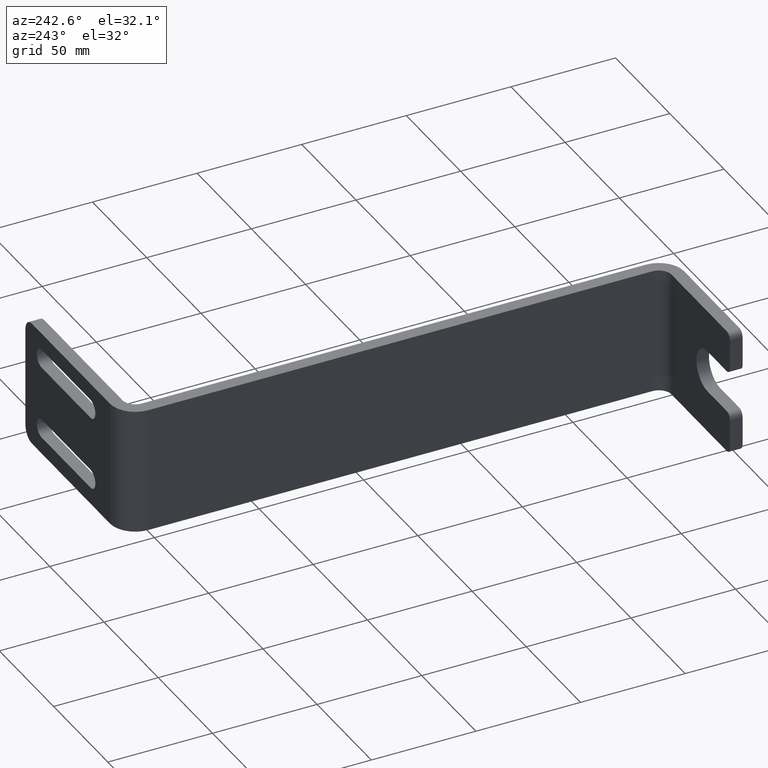
[diagram: clean part render]
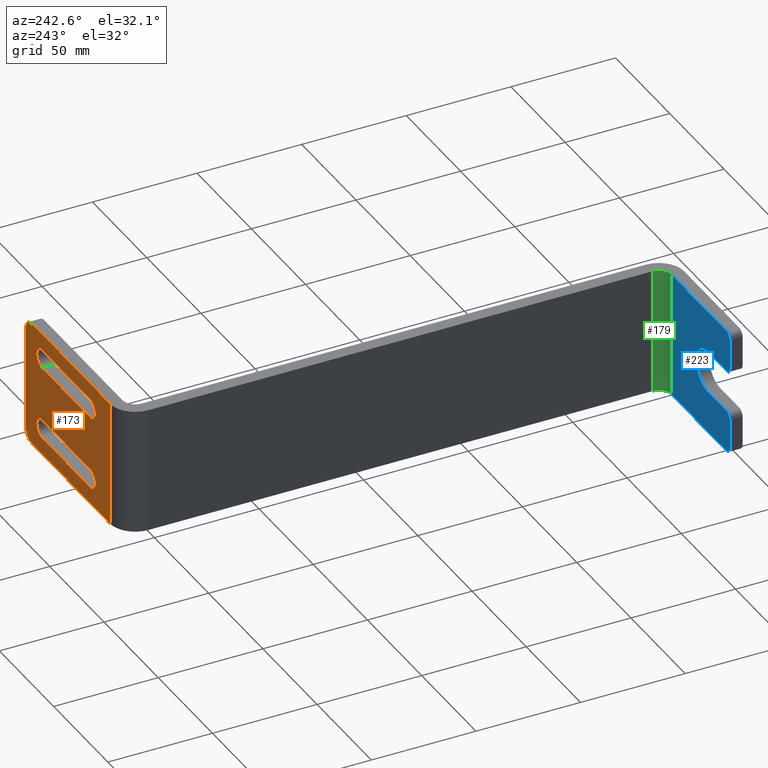
[diagram: same view with three faces highlighted in distinct colors, each labeled with its STEP entity id]
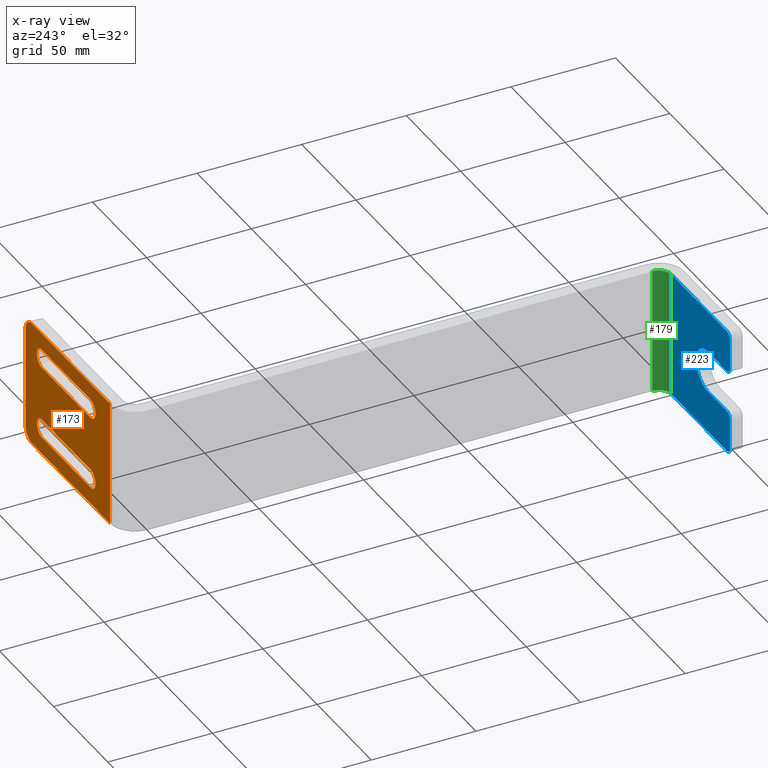
[diagram: x-ray of the same camera — body ghosted, the three highlighted faces saturated]
A machine part, auxiliary view with three faces highlighted in distinct colors.
The next image is the same camera in x-ray (body ghosted, the three faces saturated) — at least one of them is partly hidden behind the body in this view.
Their STEP definitions:

[orange] entity #173 — the highlighted planar face has unit normal (0, -1, 0).
#173=ADVANCED_FACE('Pad.4',(#466,#467,#468),#469,.F.);
#235=EDGE_CURVE('Pocket.4',#561,#564,#565,.T.);
#237=EDGE_CURVE('Pocket.4',#567,#568,#569,.T.);
#247=EDGE_CURVE('Pocket.4',#581,#584,#585,.T.);
#249=EDGE_CURVE('Pocket.4',#587,#588,#589,.T.);
#275=EDGE_CURVE('Pad.4',#625,#626,#627,.T.);
#277=EDGE_CURVE('EdgeFillet.4',#629,#626,#630,.T.);
#279=EDGE_CURVE('Pad.4',#632,#629,#633,.T.);
#281=EDGE_CURVE('EdgeFillet.4',#635,#632,#636,.T.);
#283=EDGE_CURVE('Pad.4',#638,#635,#639,.T.);
#285=EDGE_CURVE('EdgeFillet.3',#638,#625,#641,.T.);
#287=EDGE_CURVE('Pocket.4',#643,#644,#645,.F.);
#289=EDGE_CURVE('Pocket.4',#584,#643,#647,.T.);
#291=EDGE_CURVE('Pocket.4',#588,#581,#649,.F.);
#293=EDGE_CURVE('Pocket.4',#644,#587,#651,.T.);
#295=EDGE_CURVE('Pocket.4',#653,#654,#655,.F.);
#297=EDGE_CURVE('Pocket.4',#564,#653,#657,.T.);
#299=EDGE_CURVE('Pocket.4',#568,#561,#659,.F.);
#301=EDGE_CURVE('Pocket.4',#654,#567,#661,.T.);
#466=FACE_OUTER_BOUND('',#850,.T.);
#467=FACE_BOUND('',#851,.T.);
#468=FACE_BOUND('',#852,.T.);
#469=PLANE('',#853);
#561=VERTEX_POINT('',#947);
#564=VERTEX_POINT('',#952);
#565=CIRCLE('',#953,4.5);
#567=VERTEX_POINT('',#956);
#568=VERTEX_POINT('',#957);
#569=CIRCLE('',#958,4.5);
#581=VERTEX_POINT('',#975);
#584=VERTEX_POINT('',#980);
#585=CIRCLE('',#981,4.5);
#587=VERTEX_POINT('',#984);
#588=VERTEX_POINT('',#985);
#589=CIRCLE('',#986,4.5);
#625=VERTEX_POINT('',#1042);
#626=VERTEX_POINT('',#1043);
#627=LINE('',#1044,#1045);
#629=VERTEX_POINT('',#1048);
#630=CIRCLE('',#1049,6.0);
#632=VERTEX_POINT('',#1052);
#633=LINE('',#1053,#1054);
#635=VERTEX_POINT('',#1057);
#636=CIRCLE('',#1058,6.0);
#638=VERTEX_POINT('',#1061);
#639=LINE('',#1062,#1063);
#641=LINE('',#1066,#1067);
#643=VERTEX_POINT('',#1070);
#644=VERTEX_POINT('',#1071);
#645=LINE('',#1072,#1073);
#647=CIRCLE('',#1076,4.5);
#649=LINE('',#1079,#1080);
#651=CIRCLE('',#1083,4.5);
#653=VERTEX_POINT('',#1086);
#654=VERTEX_POINT('',#1087);
#655=LINE('',#1088,#1089);
#657=CIRCLE('',#1092,4.5);
#659=LINE('',#1095,#1096);
#661=CIRCLE('',#1099,4.5);
#850=EDGE_LOOP('',(#1421,#1422,#1423,#1424,#1425,#1426));
#851=EDGE_LOOP('',(#1427,#1428,#1429,#1430,#1431,#1432));
#852=EDGE_LOOP('',(#1433,#1434,#1435,#1436,#1437,#1438));
#853=AXIS2_PLACEMENT_3D('',#1439,#1440,#1441);
#947=CARTESIAN_POINT('',(30.0,265.0,8.0));
#952=CARTESIAN_POINT('',(25.5,265.0,12.5));
#953=AXIS2_PLACEMENT_3D('',#1716,#1717,#1718);
#956=CARTESIAN_POINT('',(79.5,265.0,12.5));
#957=CARTESIAN_POINT('',(75.0,265.0,8.0));
#958=AXIS2_PLACEMENT_3D('',#1719,#1720,#1721);
#975=CARTESIAN_POINT('',(30.0,265.0,43.0));
#980=CARTESIAN_POINT('',(25.5,265.0,47.5));
#981=AXIS2_PLACEMENT_3D('',#1730,#1731,#1732);
#984=CARTESIAN_POINT('',(79.5,265.0,47.5));
#985=CARTESIAN_POINT('',(75.0,265.0,43.0));
#986=AXIS2_PLACEMENT_3D('',#1733,#1734,#1735);
#1042=CARTESIAN_POINT('',(12.0000000000005,265.0,60.0));
#1043=CARTESIAN_POINT('',(84.0,265.0,60.0));
#1044=CARTESIAN_POINT('',(48.0000000000002,265.0,60.0));
#1045=VECTOR('',#1758,1.0);
#1048=CARTESIAN_POINT('',(89.9999999999995,265.0,54.0));
#1049=AXIS2_PLACEMENT_3D('',#1759,#1760,#1761);
#1052=CARTESIAN_POINT('',(89.9999999999995,265.0,6.0));
#1053=CARTESIAN_POINT('',(89.9999999999995,265.0,30.0));
#1054=VECTOR('',#1762,1.0);
#1057=CARTESIAN_POINT('',(84.0,265.0,0.0));
#1058=AXIS2_PLACEMENT_3D('',#1763,#1764,#1765);
#1061=CARTESIAN_POINT('',(12.0000000000005,265.0,0.0));
#1062=CARTESIAN_POINT('',(48.0000000000002,265.0,0.0));
#1063=VECTOR('',#1766,1.0);
#1066=CARTESIAN_POINT('',(12.0,265.0,30.0));
#1067=VECTOR('',#1767,1.0);
#1070=CARTESIAN_POINT('',(30.0,265.0,52.0));
#1071=CARTESIAN_POINT('',(75.0,265.0,52.0));
#1072=CARTESIAN_POINT('',(52.5,265.0,52.0));
#1073=VECTOR('',#1768,1.0);
#1076=AXIS2_PLACEMENT_3D('',#1769,#1770,#1771);
#1079=CARTESIAN_POINT('',(52.5,265.0,43.0));
#1080=VECTOR('',#1772,1.0);
#1083=AXIS2_PLACEMENT_3D('',#1773,#1774,#1775);
#1086=CARTESIAN_POINT('',(30.0,265.0,17.0));
#1087=CARTESIAN_POINT('',(75.0,265.0,17.0));
#1088=CARTESIAN_POINT('',(52.5,265.0,17.0));
#1089=VECTOR('',#1776,1.0);
#1092=AXIS2_PLACEMENT_3D('',#1777,#1778,#1779);
#1095=CARTESIAN_POINT('',(52.5,265.0,8.0));
#1096=VECTOR('',#1780,1.0);
#1099=AXIS2_PLACEMENT_3D('',#1781,#1782,#1783);
#1421=ORIENTED_EDGE('',*,*,#275,.T.);
#1422=ORIENTED_EDGE('',*,*,#277,.F.);
#1423=ORIENTED_EDGE('',*,*,#279,.F.);
#1424=ORIENTED_EDGE('',*,*,#281,.F.);
#1425=ORIENTED_EDGE('',*,*,#283,.F.);
#1426=ORIENTED_EDGE('',*,*,#285,.T.);
#1427=ORIENTED_EDGE('',*,*,#287,.F.);
#1428=ORIENTED_EDGE('',*,*,#289,.F.);
#1429=ORIENTED_EDGE('',*,*,#247,.F.);
#1430=ORIENTED_EDGE('',*,*,#291,.F.);
#1431=ORIENTED_EDGE('',*,*,#249,.F.);
#1432=ORIENTED_EDGE('',*,*,#293,.F.);
#1433=ORIENTED_EDGE('',*,*,#295,.F.);
#1434=ORIENTED_EDGE('',*,*,#297,.F.);
#1435=ORIENTED_EDGE('',*,*,#235,.F.);
#1436=ORIENTED_EDGE('',*,*,#299,.F.);
#1437=ORIENTED_EDGE('',*,*,#237,.F.);
#1438=ORIENTED_EDGE('',*,*,#301,.F.);
#1439=CARTESIAN_POINT('',(-4.95048446680357E-013,265.0,0.0));
#1440=DIRECTION('',(0.0,-1.0,0.0));
#1441=DIRECTION('',(0.0,0.0,-1.0));
#1716=CARTESIAN_POINT('',(30.0,265.0,12.5));
#1717=DIRECTION('',(-0.0,1.0,0.0));
#1718=DIRECTION('',(-1.0,-0.0,0.0));
#1719=CARTESIAN_POINT('',(75.0,265.0,12.5));
#1720=DIRECTION('',(-0.0,1.0,0.0));
#1721=DIRECTION('',(-1.0,-0.0,0.0));
#1730=CARTESIAN_POINT('',(30.0,265.0,47.5));
#1731=DIRECTION('',(-0.0,1.0,0.0));
#1732=DIRECTION('',(-1.0,-0.0,0.0));
#1733=CARTESIAN_POINT('',(75.0,265.0,47.5));
#1734=DIRECTION('',(-0.0,1.0,0.0));
#1735=DIRECTION('',(-1.0,-0.0,0.0));
#1758=DIRECTION('',(1.0,0.0,0.0));
#1759=CARTESIAN_POINT('',(84.0,265.0,54.0));
#1760=DIRECTION('',(0.0,-1.0,0.0));
#1761=DIRECTION('',(1.0,0.0,0.0));
#1762=DIRECTION('',(0.0,0.0,1.0));
#1763=CARTESIAN_POINT('',(84.0,265.0,6.0));
#1764=DIRECTION('',(0.0,-1.0,0.0));
#1765=DIRECTION('',(1.0,0.0,0.0));
#1766=DIRECTION('',(1.0,0.0,0.0));
#1767=DIRECTION('',(0.0,0.0,1.0));
#1768=DIRECTION('',(-1.0,0.0,0.0));
#1769=CARTESIAN_POINT('',(30.0,265.0,47.5));
#1770=DIRECTION('',(-0.0,1.0,0.0));
#1771=DIRECTION('',(-1.0,-0.0,0.0));
#1772=DIRECTION('',(1.0,0.0,0.0));
#1773=CARTESIAN_POINT('',(75.0,265.0,47.5));
#1774=DIRECTION('',(-0.0,1.0,0.0));
#1775=DIRECTION('',(-1.0,-0.0,0.0));
#1776=DIRECTION('',(-1.0,0.0,0.0));
#1777=CARTESIAN_POINT('',(30.0,265.0,12.5));
#1778=DIRECTION('',(-0.0,1.0,0.0));
#1779=DIRECTION('',(-1.0,-0.0,0.0));
#1780=DIRECTION('',(1.0,0.0,0.0));
#1781=CARTESIAN_POINT('',(75.0,265.0,12.5));
#1782=DIRECTION('',(-0.0,1.0,0.0));
#1783=DIRECTION('',(-1.0,-0.0,0.0));

[blue] entity #223 — the highlighted planar face has unit normal (0, -1, 0).
#223=ADVANCED_FACE('Pad.5',(#545),#546,.F.);
#317=EDGE_CURVE('EdgeFillet.5',#682,#679,#683,.F.);
#365=EDGE_CURVE('Pad.5',#740,#682,#741,.T.);
#371=EDGE_CURVE('EdgeFillet.7',#740,#748,#749,.T.);
#379=EDGE_CURVE('Pad.5',#679,#756,#759,.F.);
#385=EDGE_CURVE('EdgeFillet.7',#764,#756,#767,.T.);
#401=EDGE_CURVE('Pad.5',#764,#789,#790,.T.);
#405=EDGE_CURVE('EdgeFillet.7',#794,#789,#795,.T.);
#409=EDGE_CURVE('Pad.5',#799,#748,#800,.T.);
#413=EDGE_CURVE('EdgeFillet.7',#799,#804,#805,.T.);
#417=EDGE_CURVE('Pocket.5',#794,#809,#810,.T.);
#419=EDGE_CURVE('Pocket.5',#809,#812,#813,.T.);
#421=EDGE_CURVE('Pocket.5',#804,#812,#815,.T.);
#545=FACE_OUTER_BOUND('',#929,.T.);
#546=PLANE('',#930);
#679=VERTEX_POINT('',#1128);
#682=VERTEX_POINT('',#1132);
#683=LINE('',#1133,#1134);
#740=VERTEX_POINT('',#1231);
#741=LINE('',#1232,#1233);
#748=VERTEX_POINT('',#1244);
#749=CIRCLE('',#1245,3.0);
#756=VERTEX_POINT('',#1257);
#759=LINE('',#1262,#1263);
#764=VERTEX_POINT('',#1270);
#767=CIRCLE('',#1275,3.0);
#789=VERTEX_POINT('',#1309);
#790=LINE('',#1310,#1311);
#794=VERTEX_POINT('',#1318);
#795=CIRCLE('',#1319,3.0);
#799=VERTEX_POINT('',#1326);
#800=LINE('',#1327,#1328);
#804=VERTEX_POINT('',#1335);
#805=CIRCLE('',#1336,3.0);
#809=VERTEX_POINT('',#1343);
#810=LINE('',#1344,#1345);
#812=VERTEX_POINT('',#1348);
#813=CIRCLE('',#1349,10.0);
#815=LINE('',#1352,#1353);
#929=EDGE_LOOP('',(#1673,#1674,#1675,#1676,#1677,#1678,#1679,#1680,#1681,#1682,#1683,#1684));
#930=AXIS2_PLACEMENT_3D('',#1685,#1686,#1687);
#1128=CARTESIAN_POINT('',(-6.00000000000002,6.00000000000011,0.0));
#1132=CARTESIAN_POINT('',(-5.99999999999999,6.00000000000011,60.0));
#1133=CARTESIAN_POINT('',(-6.0,6.00000000000011,30.0));
#1134=VECTOR('',#1797,1.0);
#1231=CARTESIAN_POINT('',(-57.0,6.00000000000011,60.0));
#1232=CARTESIAN_POINT('',(-31.5,6.00000000000011,60.0));
#1233=VECTOR('',#1835,1.0);
#1244=CARTESIAN_POINT('',(-60.0,6.00000000000011,57.0));
#1245=AXIS2_PLACEMENT_3D('',#1840,#1841,#1842);
#1257=CARTESIAN_POINT('',(-57.0,6.00000000000011,0.0));
#1262=CARTESIAN_POINT('',(-31.5,6.00000000000011,0.0));
#1263=VECTOR('',#1846,1.0);
#1270=CARTESIAN_POINT('',(-60.0,6.00000000000011,3.0));
#1275=AXIS2_PLACEMENT_3D('',#1851,#1852,#1853);
#1309=CARTESIAN_POINT('',(-60.0,6.00000000000011,17.0));
#1310=CARTESIAN_POINT('',(-60.0,6.00000000000011,10.0));
#1311=VECTOR('',#1867,1.0);
#1318=CARTESIAN_POINT('',(-57.0,6.00000000000011,20.0));
#1319=AXIS2_PLACEMENT_3D('',#1869,#1870,#1871);
#1326=CARTESIAN_POINT('',(-60.0,6.00000000000011,43.0));
#1327=CARTESIAN_POINT('',(-60.0,6.00000000000011,50.0));
#1328=VECTOR('',#1873,1.0);
#1335=CARTESIAN_POINT('',(-57.0,6.00000000000011,40.0));
#1336=AXIS2_PLACEMENT_3D('',#1875,#1876,#1877);
#1343=CARTESIAN_POINT('',(-39.0,6.00000000000011,20.0));
#1344=CARTESIAN_POINT('',(-48.0,6.00000000000011,20.0));
#1345=VECTOR('',#1879,1.0);
#1348=CARTESIAN_POINT('',(-39.0,6.00000000000011,40.0));
#1349=AXIS2_PLACEMENT_3D('',#1880,#1881,#1882);
#1352=CARTESIAN_POINT('',(-48.0,6.00000000000011,40.0));
#1353=VECTOR('',#1883,1.0);
#1673=ORIENTED_EDGE('',*,*,#371,.F.);
#1674=ORIENTED_EDGE('',*,*,#365,.T.);
#1675=ORIENTED_EDGE('',*,*,#317,.T.);
#1676=ORIENTED_EDGE('',*,*,#379,.T.);
#1677=ORIENTED_EDGE('',*,*,#385,.F.);
#1678=ORIENTED_EDGE('',*,*,#401,.T.);
#1679=ORIENTED_EDGE('',*,*,#405,.F.);
#1680=ORIENTED_EDGE('',*,*,#417,.T.);
#1681=ORIENTED_EDGE('',*,*,#419,.T.);
#1682=ORIENTED_EDGE('',*,*,#421,.F.);
#1683=ORIENTED_EDGE('',*,*,#413,.F.);
#1684=ORIENTED_EDGE('',*,*,#409,.T.);
#1685=CARTESIAN_POINT('',(-60.0,6.00000000000011,0.0));
#1686=DIRECTION('',(0.0,-1.0,0.0));
#1687=DIRECTION('',(0.0,0.0,-1.0));
#1797=DIRECTION('',(0.0,0.0,1.0));
#1835=DIRECTION('',(1.0,0.0,0.0));
#1840=CARTESIAN_POINT('',(-57.0,6.00000000000011,57.0));
#1841=DIRECTION('',(0.0,-1.0,0.0));
#1842=DIRECTION('',(1.0,0.0,0.0));
#1846=DIRECTION('',(1.0,0.0,0.0));
#1851=CARTESIAN_POINT('',(-57.0,6.00000000000011,3.0));
#1852=DIRECTION('',(0.0,-1.0,0.0));
#1853=DIRECTION('',(1.0,0.0,0.0));
#1867=DIRECTION('',(0.0,0.0,1.0));
#1869=CARTESIAN_POINT('',(-57.0,6.00000000000011,17.0));
#1870=DIRECTION('',(0.0,-1.0,0.0));
#1871=DIRECTION('',(1.0,0.0,0.0));
#1873=DIRECTION('',(0.0,0.0,1.0));
#1875=CARTESIAN_POINT('',(-57.0,6.00000000000011,43.0));
#1876=DIRECTION('',(0.0,-1.0,0.0));
#1877=DIRECTION('',(1.0,0.0,0.0));
#1879=DIRECTION('',(1.0,0.0,0.0));
#1880=CARTESIAN_POINT('',(-39.0,6.00000000000011,30.0));
#1881=DIRECTION('',(0.0,-1.0,0.0));
#1882=DIRECTION('',(1.0,0.0,0.0));
#1883=DIRECTION('',(1.0,0.0,0.0));

[green] entity #179 — the highlighted cylindrical surface (edge-blend (fillet) strip) has radius 6 mm, axis along (0, -0, -1).
#179=ADVANCED_FACE('EdgeFillet.5',(#477),#478,.F.);
#309=EDGE_CURVE('EdgeFillet.5',#671,#672,#673,.F.);
#315=EDGE_CURVE('EdgeFillet.5',#679,#672,#680,.T.);
#317=EDGE_CURVE('EdgeFillet.5',#682,#679,#683,.F.);
#319=EDGE_CURVE('EdgeFillet.5',#671,#682,#685,.F.);
#477=FACE_OUTER_BOUND('',#861,.T.);
#478=CYLINDRICAL_SURFACE('',#862,6.0);
#671=VERTEX_POINT('',#1114);
#672=VERTEX_POINT('',#1115);
#673=LINE('',#1116,#1117);
#679=VERTEX_POINT('',#1128);
#680=CIRCLE('',#1129,6.0);
#682=VERTEX_POINT('',#1132);
#683=LINE('',#1133,#1134);
#685=CIRCLE('',#1137,6.0);
#861=EDGE_LOOP('',(#1459,#1460,#1461,#1462));
#862=AXIS2_PLACEMENT_3D('',#1463,#1464,#1465);
#1114=CARTESIAN_POINT('',(0.0,12.0000000000001,60.0));
#1115=CARTESIAN_POINT('',(0.0,12.0000000000001,0.0));
#1116=CARTESIAN_POINT('',(0.0,12.0000000000001,30.0));
#1117=VECTOR('',#1791,1.0);
#1128=CARTESIAN_POINT('',(-6.00000000000002,6.00000000000011,0.0));
#1129=AXIS2_PLACEMENT_3D('',#1794,#1795,#1796);
#1132=CARTESIAN_POINT('',(-5.99999999999999,6.00000000000011,60.0));
#1133=CARTESIAN_POINT('',(-6.0,6.00000000000011,30.0));
#1134=VECTOR('',#1797,1.0);
#1137=AXIS2_PLACEMENT_3D('',#1798,#1799,#1800);
#1459=ORIENTED_EDGE('',*,*,#315,.F.);
#1460=ORIENTED_EDGE('',*,*,#317,.F.);
#1461=ORIENTED_EDGE('',*,*,#319,.F.);
#1462=ORIENTED_EDGE('',*,*,#309,.T.);
#1463=CARTESIAN_POINT('',(-6.0,12.0000000000001,30.0));
#1464=DIRECTION('',(0.0,-0.0,-1.0));
#1465=DIRECTION('',(0.0,-1.0,0.0));
#1791=DIRECTION('',(0.0,0.0,1.0));
#1794=CARTESIAN_POINT('',(-6.0,12.0000000000001,0.0));
#1795=DIRECTION('',(0.0,0.0,1.0));
#1796=DIRECTION('',(1.0,0.0,0.0));
#1797=DIRECTION('',(0.0,0.0,1.0));
#1798=CARTESIAN_POINT('',(-6.0,12.0000000000001,60.0));
#1799=DIRECTION('',(0.0,0.0,1.0));
#1800=DIRECTION('',(1.0,0.0,0.0));